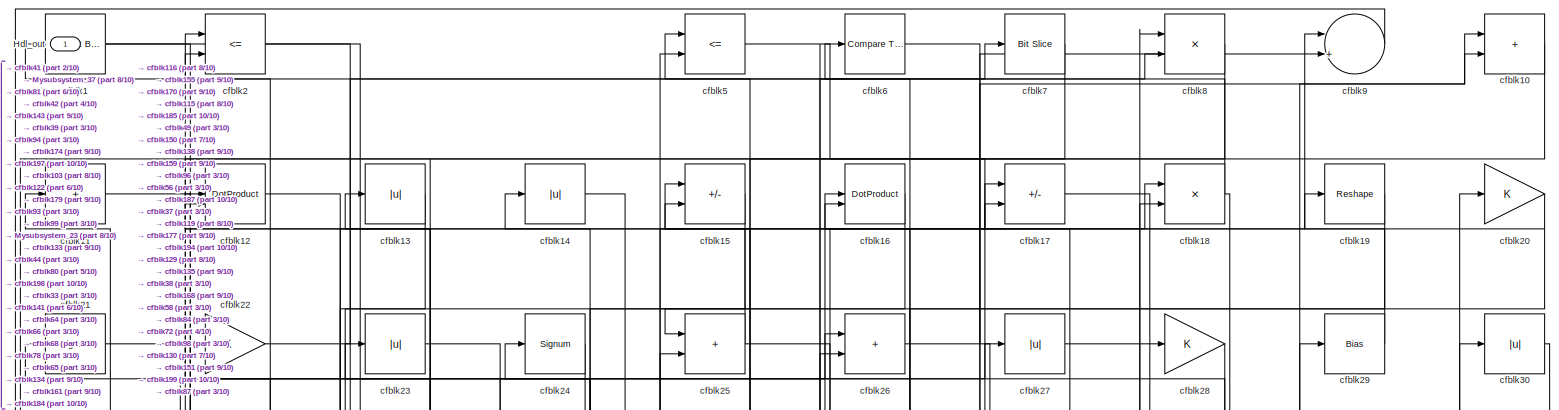
[diagram: root canvas - part 1/10, full width, top band]
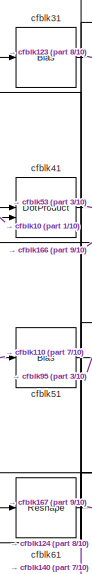
[diagram: root canvas - part 2/10, top left region]
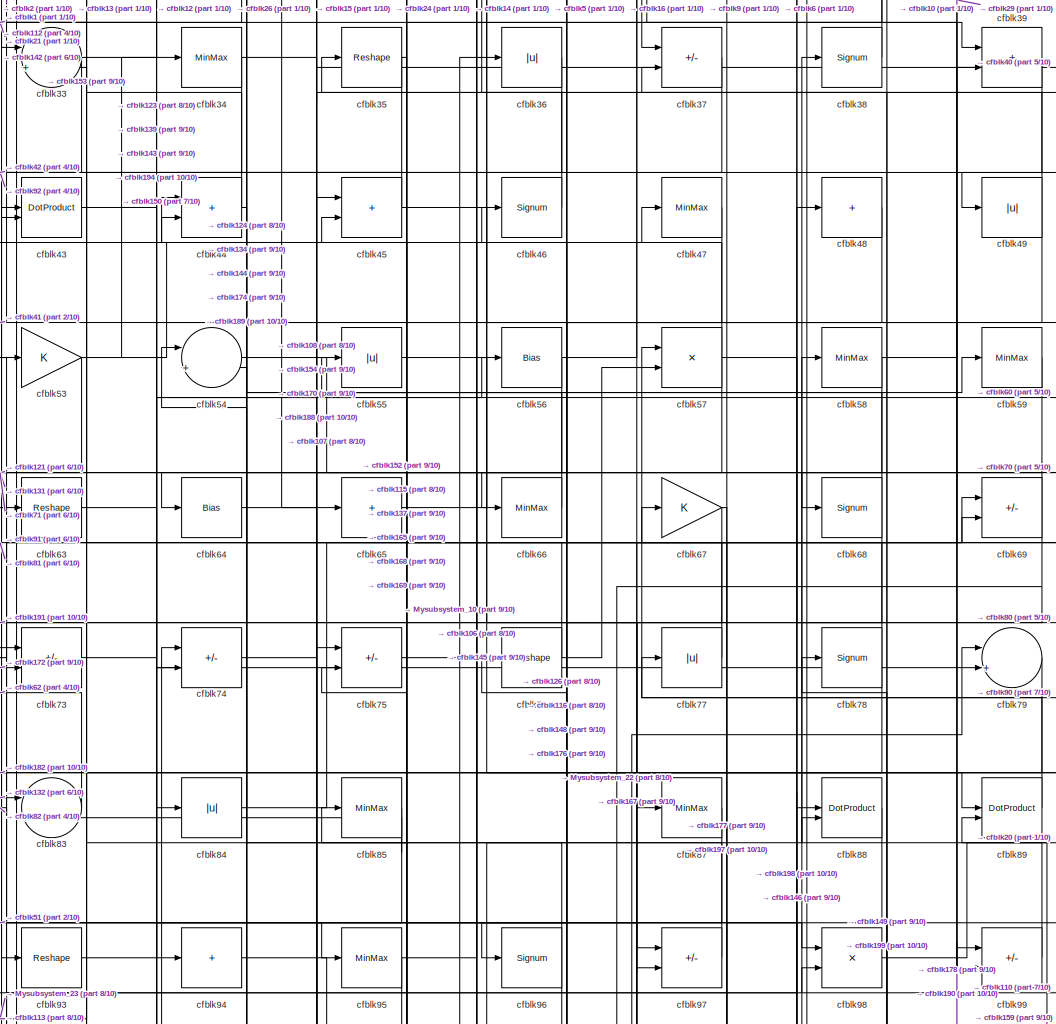
[diagram: root canvas - part 3/10, top center region]
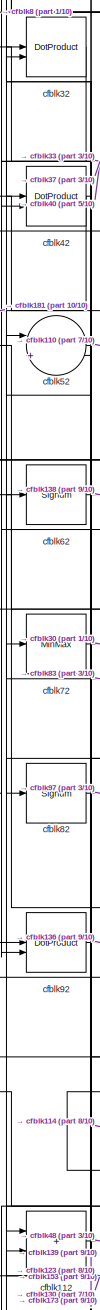
[diagram: root canvas - part 4/10, middle left region]
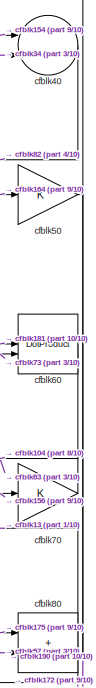
[diagram: root canvas - part 5/10, top right region]
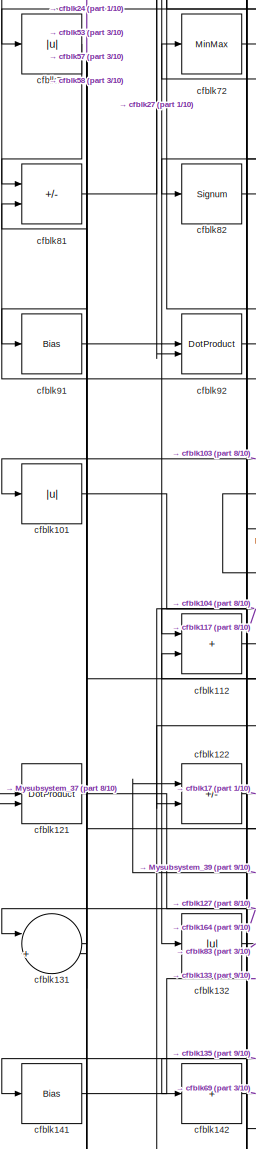
[diagram: root canvas - part 6/10, middle left region]
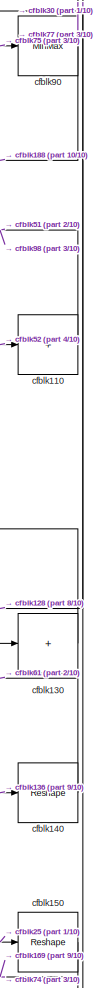
[diagram: root canvas - part 7/10, middle right region]
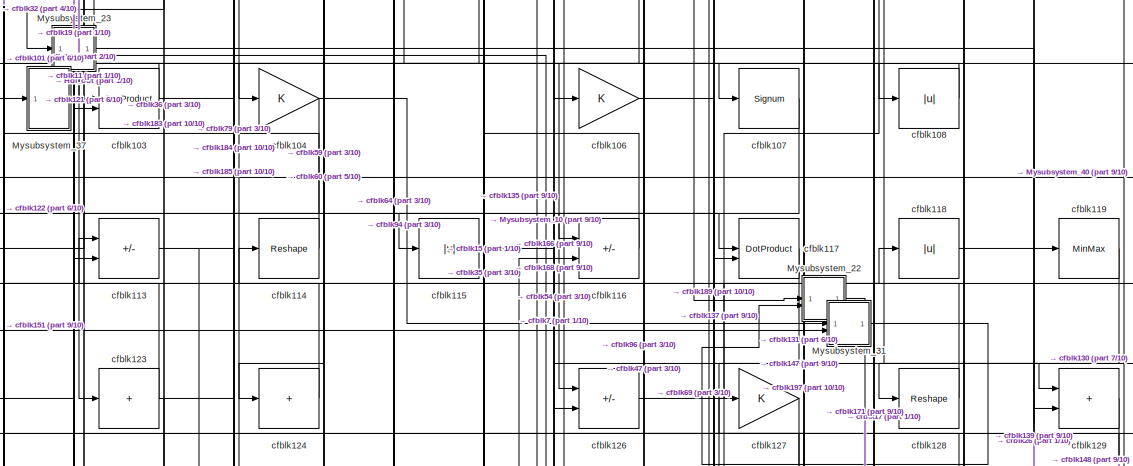
[diagram: root canvas - part 8/10, central region]
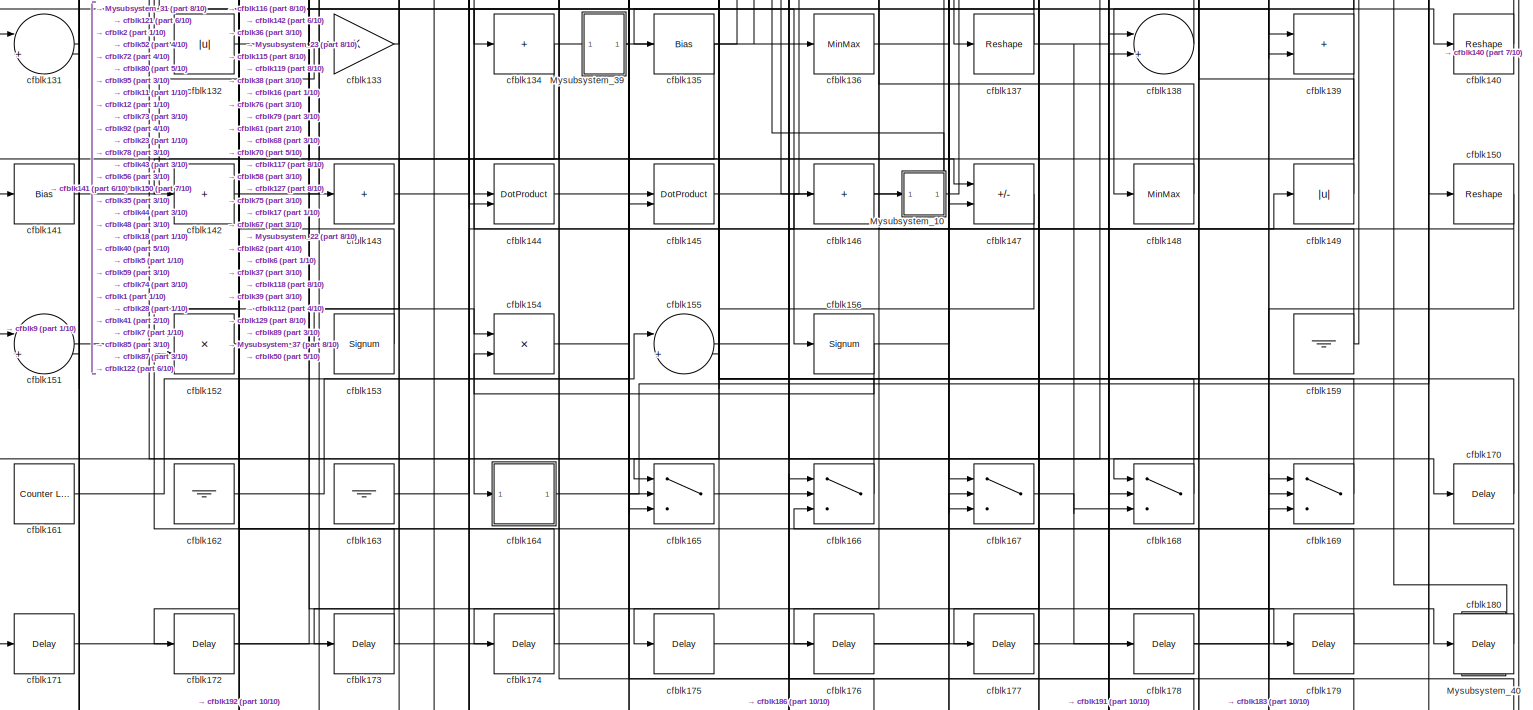
[diagram: root canvas - part 9/10, full width, bottom band]
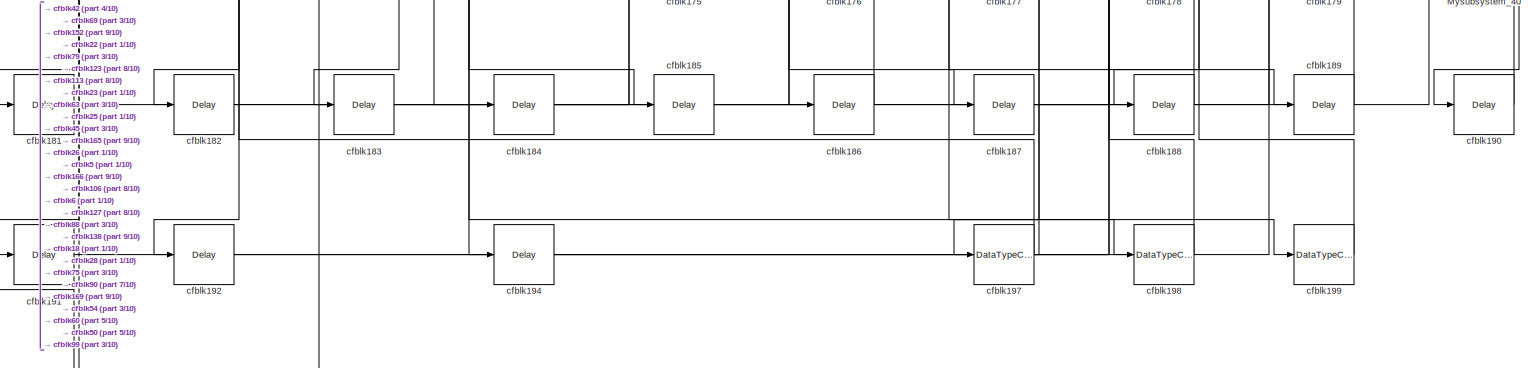
[diagram: root canvas - part 10/10, full width, bottom band]
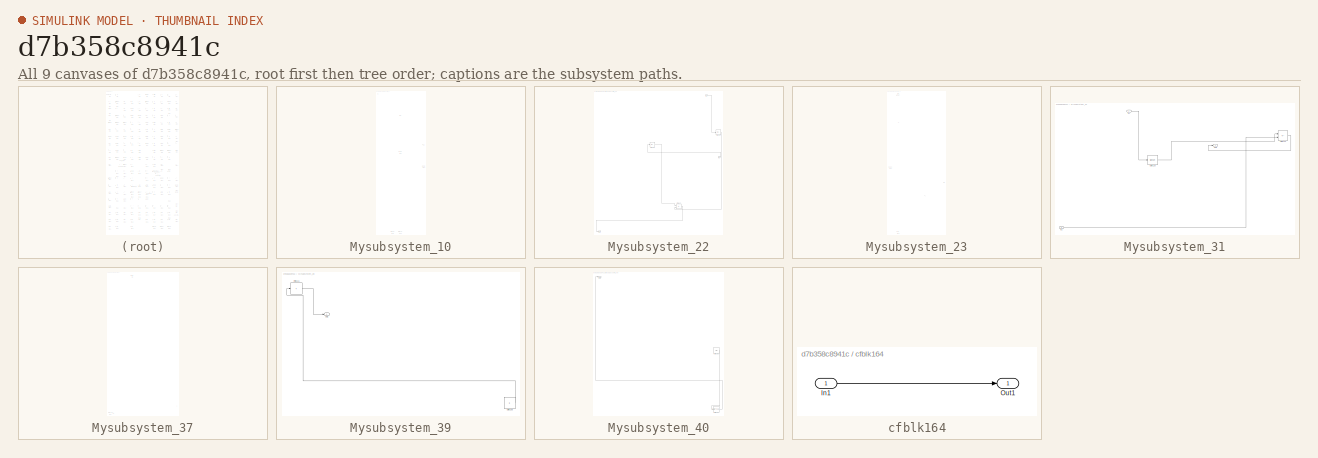
[diagram: thumbnail index - all 9 canvases of the model, root first then tree order]
MODEL slx_d7b358c8941c
KIND model
CONFIG AbsTol = auto
CONFIG EnableMultiTasking = off
CONFIG FixedStep = auto
CONFIG MaxStep = auto
CONFIG MinStep = auto
CONFIG RelTol = 1e-3
CONFIG SampleTimeConstraint = Unconstrained
CONFIG SolverName = VariableStepAuto
CONFIG StartTime = 0.0
CONFIG StopTime = 10.0
BLOCK [Outport] Hdl_out
  OutDataTypeStr = uint8
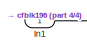
[diagram: Mysubsystem_10 - part 1/4, top left region]
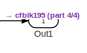
[diagram: Mysubsystem_10 - part 2/4, top center region]
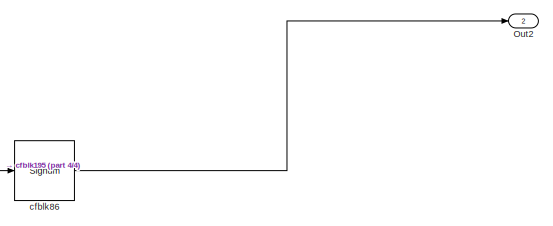
[diagram: Mysubsystem_10 - part 3/4, middle right region]
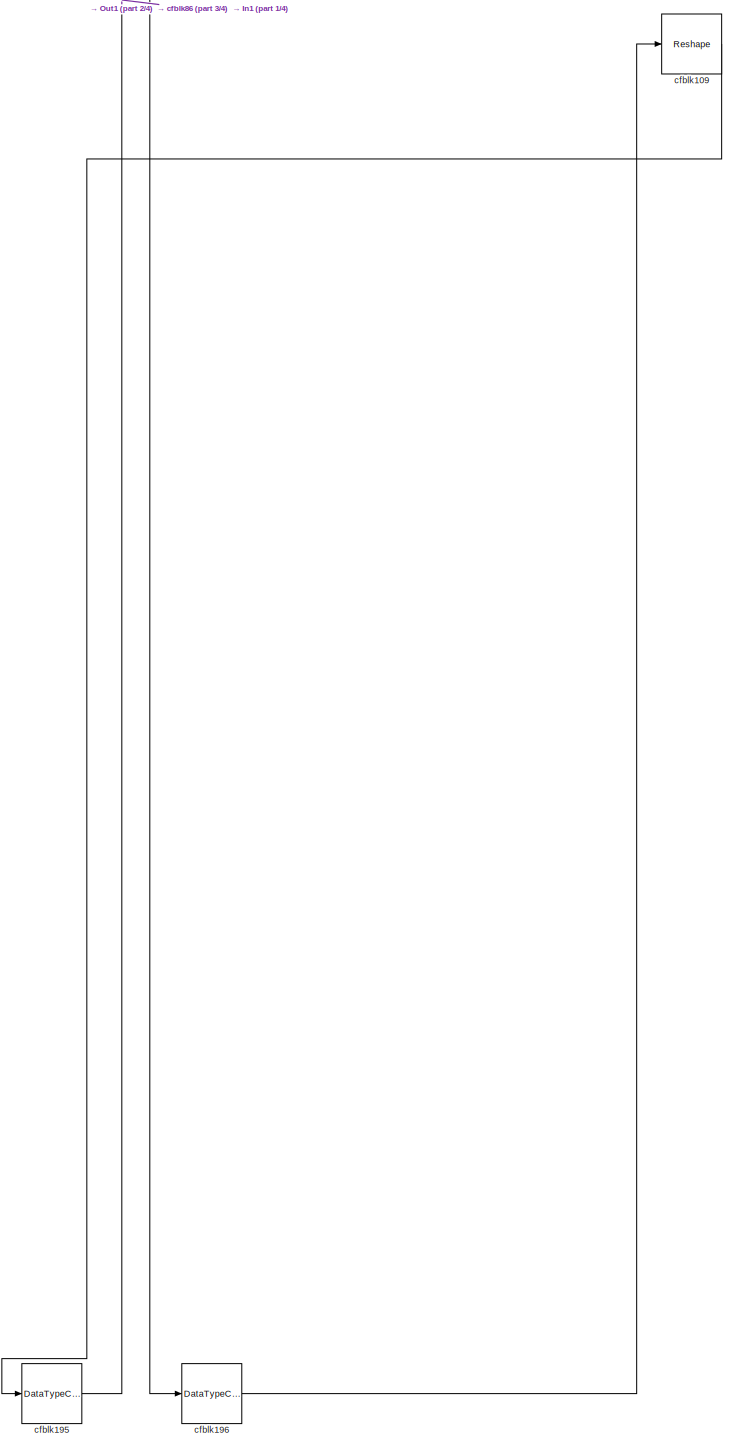
[diagram: Mysubsystem_10 - part 4/4, bottom center region]
BLOCK [SubSystem] Mysubsystem_10
  RTWFcnName = Mysubsystem_10
  RTWFcnNameOpts = User specified
  RTWFileNameOpts = Use function name
  RTWSystemCode = Reusable function
  TreatAsAtomicUnit = on
BLOCK [Inport] Mysubsystem_10/In1
BLOCK [Outport] Mysubsystem_10/Out1
BLOCK [Outport] Mysubsystem_10/Out2
  Port = 2
BLOCK [Reshape] Mysubsystem_10/cfblk109
BLOCK [DataTypeConversion] Mysubsystem_10/cfblk195
  RndMeth = Floor
  SaturateOnIntegerOverflow = off
BLOCK [DataTypeConversion] Mysubsystem_10/cfblk196
  OutDataTypeStr = uint8
  RndMeth = Floor
  SaturateOnIntegerOverflow = off
BLOCK [Signum] Mysubsystem_10/cfblk86
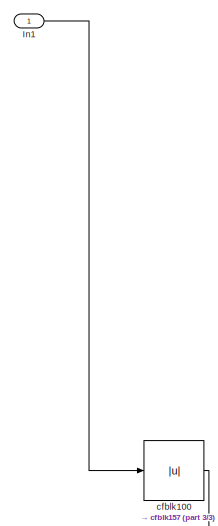
[diagram: Mysubsystem_22 - part 1/3, top right region]
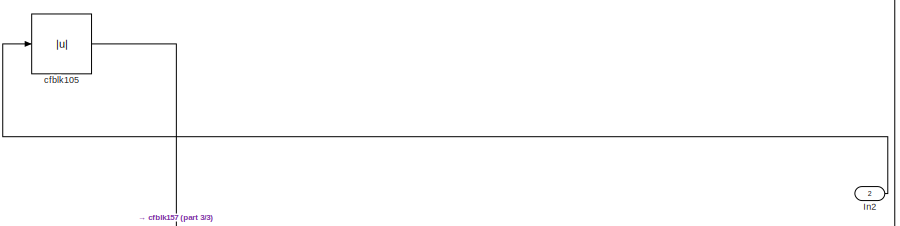
[diagram: Mysubsystem_22 - part 2/3, middle right region]
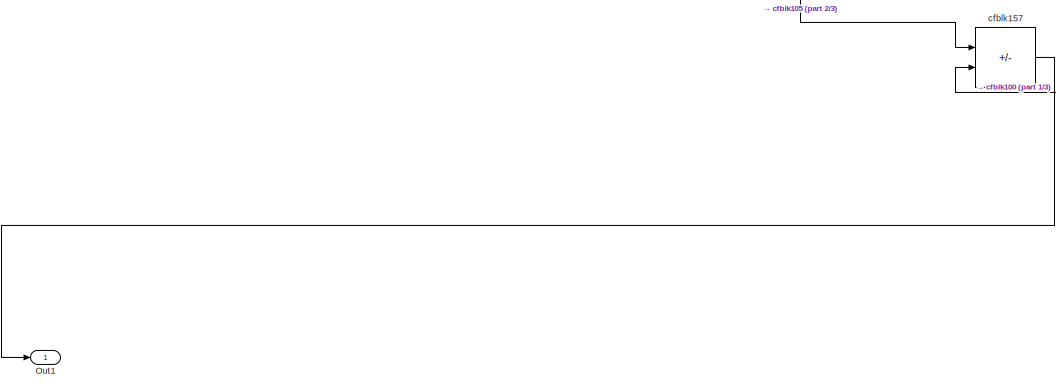
[diagram: Mysubsystem_22 - part 3/3, bottom center region]
BLOCK [SubSystem] Mysubsystem_22
  RTWFcnName = Mysubsystem_22
  RTWFcnNameOpts = User specified
  RTWFileNameOpts = Use function name
  RTWSystemCode = Reusable function
  TreatAsAtomicUnit = on
BLOCK [Inport] Mysubsystem_22/In1
BLOCK [Inport] Mysubsystem_22/In2
  Port = 2
BLOCK [Outport] Mysubsystem_22/Out1
BLOCK [Abs] Mysubsystem_22/cfblk100
  SaturateOnIntegerOverflow = off
BLOCK [Abs] Mysubsystem_22/cfblk105
  SaturateOnIntegerOverflow = off
BLOCK [Sum] Mysubsystem_22/cfblk157
  IconShape = rectangular
  Inputs = +-
BLOCK [SubSystem] Mysubsystem_23
  RTWFcnName = Mysubsystem_23
  RTWFcnNameOpts = User specified
  RTWFileNameOpts = Use function name
  RTWSystemCode = Reusable function
  TreatAsAtomicUnit = on
BLOCK [Inport] Mysubsystem_23/In1
BLOCK [Outport] Mysubsystem_23/Out1
BLOCK [Reshape] Mysubsystem_23/cfblk102
BLOCK [Delay] Mysubsystem_23/cfblk193
  InputPortMap = u0
  SampleTime = 1
BLOCK [Reference] Mysubsystem_23/cfblk3  REF=hdlsllib/Logic and Bit
Operations/Compare
To Zero
  SourceBlock = hdlsllib/Logic and Bit\nOperations/Compare\nTo Zero
  SourceType = Compare To Zero
BLOCK [Outport] Mysubsystem_23/y
  Port = 2
BLOCK [SubSystem] Mysubsystem_31
  RTWFcnName = Mysubsystem_31
  RTWFcnNameOpts = User specified
  RTWFileNameOpts = Use function name
  RTWSystemCode = Reusable function
  TreatAsAtomicUnit = on
BLOCK [Inport] Mysubsystem_31/In1
BLOCK [Inport] Mysubsystem_31/In2
  Port = 2
BLOCK [Outport] Mysubsystem_31/Out1
BLOCK [Sum] Mysubsystem_31/cfblk120
  IconShape = rectangular
  Inputs = +-
BLOCK [Signum] Mysubsystem_31/cfblk125
BLOCK [SubSystem] Mysubsystem_37
  RTWFcnName = Mysubsystem_37
  RTWFcnNameOpts = User specified
  RTWFileNameOpts = Use function name
  RTWSystemCode = Reusable function
  TreatAsAtomicUnit = on
BLOCK [Outport] Mysubsystem_37/Out1
BLOCK [DataTypeConversion] Mysubsystem_37/cfblk201
  RndMeth = Floor
  SaturateOnIntegerOverflow = off
BLOCK [Reference] Mysubsystem_37/cfblk4  REF=simulink/Logic and Bit
Operations/Bit Clear
  LibrarySourceBlock = hdlsllib/Logic and Bit\nOperations/Bit Clear
  SourceBlock = simulink/Logic and Bit\nOperations/Bit Clear
  SourceType = Bit Clear
BLOCK [Inport] Mysubsystem_37/u
BLOCK [SubSystem] Mysubsystem_39
  RTWFcnName = Mysubsystem_39
  RTWFcnNameOpts = User specified
  RTWFileNameOpts = Use function name
  RTWSystemCode = Reusable function
  TreatAsAtomicUnit = on
BLOCK [Outport] Mysubsystem_39/Out1
BLOCK [Sum] Mysubsystem_39/cfblk111
  IconShape = rectangular
  Inputs = +
BLOCK [Constant] Mysubsystem_39/cfblk158
  SampleTime = -1
BLOCK [SubSystem] Mysubsystem_40
  RTWFcnName = Mysubsystem_40
  RTWFcnNameOpts = User specified
  RTWFileNameOpts = Use function name
  RTWSystemCode = Reusable function
  TreatAsAtomicUnit = on
BLOCK [Outport] Mysubsystem_40/Out1
BLOCK [Ground] Mysubsystem_40/cfblk160
BLOCK [DataTypeConversion] Mysubsystem_40/cfblk200
  OutDataTypeStr = boolean
  RndMeth = Floor
  SaturateOnIntegerOverflow = off
BLOCK [Reference] cfblk1  REF=simulink/Logic and Bit
Operations/Extract Bits
  LibrarySourceBlock = hdlsllib/Logic and Bit\nOperations/Extract Bits
  SourceBlock = simulink/Logic and Bit\nOperations/Extract Bits
  SourceType = Extract Bits
BLOCK [Sum] cfblk10
  IconShape = rectangular
  OutDataTypeStr = uint8
BLOCK [Abs] cfblk101
  OutDataTypeStr = uint8
  SaturateOnIntegerOverflow = off
BLOCK [DotProduct] cfblk103
  OutDataTypeStr = uint8
BLOCK [Gain] cfblk104
  OutDataTypeStr = uint8
BLOCK [Gain] cfblk106
  OutDataTypeStr = uint8
BLOCK [Signum] cfblk107
BLOCK [Abs] cfblk108
  OutDataTypeStr = uint8
  SaturateOnIntegerOverflow = off
BLOCK [Sum] cfblk11
  IconShape = rectangular
  Inputs = +
  OutDataTypeStr = uint8
BLOCK [Sum] cfblk110
  IconShape = rectangular
  Inputs = +
  OutDataTypeStr = uint8
BLOCK [Sum] cfblk112
  IconShape = rectangular
  OutDataTypeStr = uint8
BLOCK [Sum] cfblk113
  IconShape = rectangular
  Inputs = +-
  OutDataTypeStr = uint8
BLOCK [Reshape] cfblk114
BLOCK [Abs] cfblk115
  OutDataTypeStr = uint8
  SaturateOnIntegerOverflow = off
BLOCK [Sum] cfblk116
  IconShape = rectangular
  Inputs = +-
  OutDataTypeStr = uint8
BLOCK [DotProduct] cfblk117
  OutDataTypeStr = uint8
BLOCK [Abs] cfblk118
  OutDataTypeStr = uint8
  SaturateOnIntegerOverflow = off
BLOCK [MinMax] cfblk119
  OutDataTypeStr = uint8
BLOCK [DotProduct] cfblk12
  OutDataTypeStr = uint8
BLOCK [DotProduct] cfblk121
  OutDataTypeStr = uint8
BLOCK [Sum] cfblk122
  IconShape = rectangular
  Inputs = +-
  OutDataTypeStr = uint8
BLOCK [Sum] cfblk123
  IconShape = rectangular
  Inputs = +
  OutDataTypeStr = uint8
BLOCK [Sum] cfblk124
  IconShape = rectangular
  Inputs = +
  OutDataTypeStr = uint8
BLOCK [Sum] cfblk126
  IconShape = rectangular
  Inputs = +-
  OutDataTypeStr = uint8
BLOCK [Gain] cfblk127
  OutDataTypeStr = uint8
BLOCK [Reshape] cfblk128
BLOCK [Sum] cfblk129
  IconShape = rectangular
  OutDataTypeStr = uint8
BLOCK [Abs] cfblk13
  OutDataTypeStr = uint8
  SaturateOnIntegerOverflow = off
BLOCK [Sum] cfblk130
  IconShape = rectangular
  Inputs = +
  OutDataTypeStr = uint8
BLOCK [Sum] cfblk131
  Inputs = |++
  OutDataTypeStr = uint8
BLOCK [Abs] cfblk132
  OutDataTypeStr = uint8
  SaturateOnIntegerOverflow = off
BLOCK [Gain] cfblk133
  OutDataTypeStr = uint8
BLOCK [Sum] cfblk134
  IconShape = rectangular
  Inputs = +
  OutDataTypeStr = uint8
BLOCK [Bias] cfblk135
  Bias = 0.0
  SaturateOnIntegerOverflow = off
BLOCK [MinMax] cfblk136
  OutDataTypeStr = uint8
BLOCK [Reshape] cfblk137
BLOCK [Sum] cfblk138
  Inputs = |++
  OutDataTypeStr = uint8
BLOCK [Sum] cfblk139
  IconShape = rectangular
  OutDataTypeStr = uint8
BLOCK [Abs] cfblk14
  OutDataTypeStr = uint8
  SaturateOnIntegerOverflow = off
BLOCK [Reshape] cfblk140
BLOCK [Bias] cfblk141
  Bias = 0.0
  SaturateOnIntegerOverflow = off
BLOCK [Sum] cfblk142
  IconShape = rectangular
  Inputs = +
  OutDataTypeStr = uint8
BLOCK [Sum] cfblk143
  IconShape = rectangular
  Inputs = +
  OutDataTypeStr = uint8
BLOCK [DotProduct] cfblk144
  OutDataTypeStr = uint8
BLOCK [DotProduct] cfblk145
  OutDataTypeStr = uint8
BLOCK [Sum] cfblk146
  IconShape = rectangular
  Inputs = +
  OutDataTypeStr = uint8
BLOCK [Sum] cfblk147
  IconShape = rectangular
  Inputs = +-
  OutDataTypeStr = uint8
BLOCK [MinMax] cfblk148
  OutDataTypeStr = uint8
BLOCK [Abs] cfblk149
  OutDataTypeStr = uint8
  SaturateOnIntegerOverflow = off
BLOCK [Sum] cfblk15
  IconShape = rectangular
  Inputs = +-
  OutDataTypeStr = uint8
BLOCK [Reshape] cfblk150
BLOCK [Sum] cfblk151
  Inputs = |++
  OutDataTypeStr = uint8
BLOCK [Product] cfblk152
  Inputs = */
  OutDataTypeStr = uint8
  RndMeth = Zero
  SaturateOnIntegerOverflow = on
BLOCK [Signum] cfblk153
BLOCK [Product] cfblk154
  Inputs = */
  OutDataTypeStr = uint8
  RndMeth = Zero
  SaturateOnIntegerOverflow = on
BLOCK [Sum] cfblk155
  Inputs = |++
  OutDataTypeStr = uint8
BLOCK [Signum] cfblk156
BLOCK [Ground] cfblk159
BLOCK [DotProduct] cfblk16
  OutDataTypeStr = uint8
BLOCK [Reference] cfblk161  REF=hdlsllib/Sources/Counter
Limited
  SourceBlock = hdlsllib/Sources/Counter\nLimited
  SourceType = Counter Limited
BLOCK [Ground] cfblk162
BLOCK [Ground] cfblk163
BLOCK [SubSystem] cfblk164
  LibrarySourceBlock = hdlsllib/Ports &\nSubsystems/Subsystem
BLOCK [Inport] cfblk164/In1
BLOCK [Outport] cfblk164/Out1
BLOCK [Switch] cfblk165
  InputSameDT = off
  OutDataTypeStr = uint8
  SaturateOnIntegerOverflow = off
BLOCK [Switch] cfblk166
  InputSameDT = off
  OutDataTypeStr = uint8
  SaturateOnIntegerOverflow = off
BLOCK [Switch] cfblk167
  InputSameDT = off
  OutDataTypeStr = uint8
  SaturateOnIntegerOverflow = off
BLOCK [Switch] cfblk168
  InputSameDT = off
  OutDataTypeStr = uint8
  SaturateOnIntegerOverflow = off
BLOCK [Switch] cfblk169
  InputSameDT = off
  OutDataTypeStr = uint8
  SaturateOnIntegerOverflow = off
BLOCK [Sum] cfblk17
  IconShape = rectangular
  Inputs = +-
  OutDataTypeStr = uint8
BLOCK [Delay] cfblk170
  InputPortMap = u0
  SampleTime = 1
BLOCK [Delay] cfblk171
  InputPortMap = u0
  SampleTime = 1
BLOCK [Delay] cfblk172
  InputPortMap = u0
  SampleTime = 1
BLOCK [Delay] cfblk173
  InputPortMap = u0
  SampleTime = 1
BLOCK [Delay] cfblk174
  InputPortMap = u0
  SampleTime = 1
BLOCK [Delay] cfblk175
  InputPortMap = u0
  SampleTime = 1
BLOCK [Delay] cfblk176
  InputPortMap = u0
  SampleTime = 1
BLOCK [Delay] cfblk177
  InputPortMap = u0
  SampleTime = 1
BLOCK [Delay] cfblk178
  InputPortMap = u0
  SampleTime = 1
BLOCK [Delay] cfblk179
  InputPortMap = u0
  SampleTime = 1
BLOCK [Product] cfblk18
  Inputs = */
  OutDataTypeStr = uint8
  RndMeth = Zero
  SaturateOnIntegerOverflow = on
BLOCK [Delay] cfblk180
  InputPortMap = u0
  SampleTime = 1
BLOCK [Delay] cfblk181
  InputPortMap = u0
  SampleTime = 1
BLOCK [Delay] cfblk182
  InputPortMap = u0
  SampleTime = 1
BLOCK [Delay] cfblk183
  InputPortMap = u0
  SampleTime = 1
BLOCK [Delay] cfblk184
  InputPortMap = u0
  SampleTime = 1
BLOCK [Delay] cfblk185
  InputPortMap = u0
  SampleTime = 1
BLOCK [Delay] cfblk186
  InputPortMap = u0
  SampleTime = 1
BLOCK [Delay] cfblk187
  InputPortMap = u0
  SampleTime = 1
BLOCK [Delay] cfblk188
  InputPortMap = u0
  SampleTime = 1
BLOCK [Delay] cfblk189
  InputPortMap = u0
  SampleTime = 1
BLOCK [Reshape] cfblk19
BLOCK [Delay] cfblk190
  InputPortMap = u0
  SampleTime = 1
BLOCK [Delay] cfblk191
  InputPortMap = u0
  SampleTime = 1
BLOCK [Delay] cfblk192
  InputPortMap = u0
  SampleTime = 1
BLOCK [Delay] cfblk194
  InputPortMap = u0
  SampleTime = 1
BLOCK [DataTypeConversion] cfblk197
  OutDataTypeStr = uint8
  RndMeth = Floor
  SaturateOnIntegerOverflow = off
BLOCK [DataTypeConversion] cfblk198
  OutDataTypeStr = uint8
  RndMeth = Floor
  SaturateOnIntegerOverflow = off
BLOCK [DataTypeConversion] cfblk199
  OutDataTypeStr = uint8
  RndMeth = Floor
  SaturateOnIntegerOverflow = off
BLOCK [RelationalOperator] cfblk2
  InputSameDT = off
  Operator = <=
  OutDataTypeStr = boolean
BLOCK [Gain] cfblk20
  OutDataTypeStr = uint8
BLOCK [Signum] cfblk21
BLOCK [Gain] cfblk22
  OutDataTypeStr = uint8
BLOCK [Abs] cfblk23
  OutDataTypeStr = uint8
  SaturateOnIntegerOverflow = off
BLOCK [Signum] cfblk24
BLOCK [Sum] cfblk25
  IconShape = rectangular
  OutDataTypeStr = uint8
BLOCK [Sum] cfblk26
  IconShape = rectangular
  OutDataTypeStr = uint8
BLOCK [Abs] cfblk27
  OutDataTypeStr = uint8
  SaturateOnIntegerOverflow = off
BLOCK [Gain] cfblk28
  OutDataTypeStr = uint8
BLOCK [Bias] cfblk29
  Bias = 0.0
  SaturateOnIntegerOverflow = off
BLOCK [Abs] cfblk30
  OutDataTypeStr = uint8
  SaturateOnIntegerOverflow = off
BLOCK [Bias] cfblk31
  Bias = 0.0
  SaturateOnIntegerOverflow = off
BLOCK [DotProduct] cfblk32
  OutDataTypeStr = uint8
BLOCK [Sum] cfblk33
  Inputs = |++
  OutDataTypeStr = uint8
BLOCK [MinMax] cfblk34
  OutDataTypeStr = uint8
BLOCK [Reshape] cfblk35
BLOCK [Abs] cfblk36
  OutDataTypeStr = uint8
  SaturateOnIntegerOverflow = off
BLOCK [Sum] cfblk37
  IconShape = rectangular
  Inputs = +-
  OutDataTypeStr = uint8
BLOCK [Signum] cfblk38
BLOCK [Sum] cfblk39
  IconShape = rectangular
  OutDataTypeStr = uint8
BLOCK [Sum] cfblk40
  Inputs = |++
  OutDataTypeStr = uint8
BLOCK [DotProduct] cfblk41
  OutDataTypeStr = uint8
BLOCK [DotProduct] cfblk42
  OutDataTypeStr = uint8
BLOCK [DotProduct] cfblk43
  OutDataTypeStr = uint8
BLOCK [Sum] cfblk44
  IconShape = rectangular
  OutDataTypeStr = uint8
BLOCK [Sum] cfblk45
  IconShape = rectangular
  OutDataTypeStr = uint8
BLOCK [Signum] cfblk46
BLOCK [MinMax] cfblk47
  OutDataTypeStr = uint8
BLOCK [Sum] cfblk48
  IconShape = rectangular
  Inputs = +
  OutDataTypeStr = uint8
BLOCK [Abs] cfblk49
  OutDataTypeStr = uint8
  SaturateOnIntegerOverflow = off
BLOCK [RelationalOperator] cfblk5
  InputSameDT = off
  Operator = <=
  OutDataTypeStr = boolean
BLOCK [Gain] cfblk50
  OutDataTypeStr = uint8
BLOCK [Bias] cfblk51
  Bias = 0.0
  SaturateOnIntegerOverflow = off
BLOCK [Sum] cfblk52
  Inputs = |++
  OutDataTypeStr = uint8
BLOCK [Gain] cfblk53
  OutDataTypeStr = uint8
BLOCK [Sum] cfblk54
  Inputs = |++
  OutDataTypeStr = uint8
BLOCK [Abs] cfblk55
  OutDataTypeStr = uint8
  SaturateOnIntegerOverflow = off
BLOCK [Bias] cfblk56
  Bias = 0.0
  SaturateOnIntegerOverflow = off
BLOCK [Product] cfblk57
  Inputs = */
  OutDataTypeStr = uint8
  RndMeth = Zero
  SaturateOnIntegerOverflow = on
BLOCK [MinMax] cfblk58
  OutDataTypeStr = uint8
BLOCK [MinMax] cfblk59
  OutDataTypeStr = uint8
BLOCK [Reference] cfblk6  REF=hdlsllib/Logic and Bit
Operations/Compare
To Zero
  SourceBlock = hdlsllib/Logic and Bit\nOperations/Compare\nTo Zero
  SourceType = Compare To Zero
BLOCK [DotProduct] cfblk60
  OutDataTypeStr = uint8
BLOCK [Reshape] cfblk61
BLOCK [Signum] cfblk62
BLOCK [Reshape] cfblk63
BLOCK [Bias] cfblk64
  Bias = 0.0
  SaturateOnIntegerOverflow = off
BLOCK [Sum] cfblk65
  IconShape = rectangular
  Inputs = +
  OutDataTypeStr = uint8
BLOCK [MinMax] cfblk66
  OutDataTypeStr = uint8
BLOCK [Gain] cfblk67
  OutDataTypeStr = uint8
BLOCK [Signum] cfblk68
BLOCK [Sum] cfblk69
  IconShape = rectangular
  Inputs = +-
  OutDataTypeStr = uint8
BLOCK [Reference] cfblk7  REF=hdlsllib/Logic and Bit
Operations/Bit Slice
  SourceBlock = hdlsllib/Logic and Bit\nOperations/Bit Slice
  SourceType = Bit Slice
BLOCK [Gain] cfblk70
  OutDataTypeStr = uint8
BLOCK [Abs] cfblk71
  OutDataTypeStr = uint8
  SaturateOnIntegerOverflow = off
BLOCK [MinMax] cfblk72
  OutDataTypeStr = uint8
BLOCK [Sum] cfblk73
  IconShape = rectangular
  Inputs = +-
  OutDataTypeStr = uint8
BLOCK [Sum] cfblk74
  IconShape = rectangular
  Inputs = +-
  OutDataTypeStr = uint8
BLOCK [Sum] cfblk75
  IconShape = rectangular
  Inputs = +-
  OutDataTypeStr = uint8
BLOCK [Reshape] cfblk76
BLOCK [Abs] cfblk77
  OutDataTypeStr = uint8
  SaturateOnIntegerOverflow = off
BLOCK [Signum] cfblk78
BLOCK [Sum] cfblk79
  Inputs = |++
  OutDataTypeStr = uint8
BLOCK [Product] cfblk8
  Inputs = */
  OutDataTypeStr = uint8
  RndMeth = Zero
  SaturateOnIntegerOverflow = on
BLOCK [Sum] cfblk80
  IconShape = rectangular
  OutDataTypeStr = uint8
BLOCK [Sum] cfblk81
  IconShape = rectangular
  Inputs = +-
  OutDataTypeStr = uint8
BLOCK [Signum] cfblk82
BLOCK [Sum] cfblk83
  Inputs = |++
  OutDataTypeStr = uint8
BLOCK [Abs] cfblk84
  OutDataTypeStr = uint8
  SaturateOnIntegerOverflow = off
BLOCK [MinMax] cfblk85
  OutDataTypeStr = uint8
BLOCK [MinMax] cfblk87
  OutDataTypeStr = uint8
BLOCK [DotProduct] cfblk88
  OutDataTypeStr = uint8
BLOCK [DotProduct] cfblk89
  OutDataTypeStr = uint8
BLOCK [Sum] cfblk9
  Inputs = |++
  OutDataTypeStr = uint8
BLOCK [MinMax] cfblk90
  OutDataTypeStr = uint8
BLOCK [Bias] cfblk91
  Bias = 0.0
  SaturateOnIntegerOverflow = off
BLOCK [DotProduct] cfblk92
  OutDataTypeStr = uint8
BLOCK [Reshape] cfblk93
BLOCK [Sum] cfblk94
  IconShape = rectangular
  Inputs = +
  OutDataTypeStr = uint8
BLOCK [MinMax] cfblk95
  OutDataTypeStr = uint8
BLOCK [Signum] cfblk96
BLOCK [Sum] cfblk97
  IconShape = rectangular
  Inputs = +-
  OutDataTypeStr = uint8
BLOCK [Product] cfblk98
  Inputs = */
  OutDataTypeStr = uint8
  RndMeth = Zero
  SaturateOnIntegerOverflow = on
BLOCK [Sum] cfblk99
  IconShape = rectangular
  Inputs = +-
  OutDataTypeStr = uint8
LINE Mysubsystem_10/In1:1 -> Mysubsystem_10/cfblk196:1
LINE Mysubsystem_10/cfblk109:1 -> Mysubsystem_10/cfblk195:1
NET Mysubsystem_10/cfblk195:1 -> Mysubsystem_10/Out1:1, Mysubsystem_10/cfblk86:1
LINE Mysubsystem_10/cfblk196:1 -> Mysubsystem_10/cfblk109:1
LINE Mysubsystem_10/cfblk86:1 -> Mysubsystem_10/Out2:1
LINE Mysubsystem_10:1 -> cfblk36:1
LINE Mysubsystem_10:2 -> cfblk79:1
LINE Mysubsystem_22/In1:1 -> Mysubsystem_22/cfblk100:1
LINE Mysubsystem_22/In2:1 -> Mysubsystem_22/cfblk105:1
LINE Mysubsystem_22/cfblk100:1 -> Mysubsystem_22/cfblk157:2
LINE Mysubsystem_22/cfblk105:1 -> Mysubsystem_22/cfblk157:1
LINE Mysubsystem_22/cfblk157:1 -> Mysubsystem_22/Out1:1
LINE Mysubsystem_22:1 -> cfblk171:1
LINE Mysubsystem_23/In1:1 -> Mysubsystem_23/cfblk193:1
LINE Mysubsystem_23/cfblk102:1 -> Mysubsystem_23/Out1:1
LINE Mysubsystem_23/cfblk193:1 -> Mysubsystem_23/cfblk3:1
NET Mysubsystem_23/cfblk3:1 -> Mysubsystem_23/cfblk102:1, Mysubsystem_23/y:1
NET Mysubsystem_23:1 -> Hdl_out:1, cfblk129:2
LINE Mysubsystem_23:2 -> Mysubsystem_10:1
LINE Mysubsystem_31/In1:1 -> Mysubsystem_31/cfblk125:1
LINE Mysubsystem_31/In2:1 -> Mysubsystem_31/cfblk120:2
LINE Mysubsystem_31/cfblk120:1 -> Mysubsystem_31/Out1:1
LINE Mysubsystem_31/cfblk125:1 -> Mysubsystem_31/cfblk120:1
LINE Mysubsystem_31:1 -> Mysubsystem_22:2
LINE Mysubsystem_37/cfblk201:1 -> Mysubsystem_37/Out1:1
LINE Mysubsystem_37/cfblk4:1 -> Mysubsystem_37/cfblk201:1
LINE Mysubsystem_37/u:1 -> Mysubsystem_37/cfblk4:1
NET Mysubsystem_37:1 -> cfblk11:1, cfblk121:1
LINE Mysubsystem_39/cfblk111:1 -> Mysubsystem_39/Out1:1
LINE Mysubsystem_39/cfblk158:1 -> Mysubsystem_39/cfblk111:1
LINE Mysubsystem_39:1 -> cfblk122:1
LINE Mysubsystem_40/cfblk160:1 -> Mysubsystem_40/cfblk200:1
LINE Mysubsystem_40/cfblk200:1 -> Mysubsystem_40/Out1:1
LINE Mysubsystem_40:1 -> Mysubsystem_37:1
LINE cfblk101:1 -> cfblk117:1
NET cfblk103:1 -> cfblk101:1, cfblk117:2
NET cfblk104:1 -> Mysubsystem_31:1, cfblk122:2
LINE cfblk106:1 -> cfblk189:1
LINE cfblk107:1 -> cfblk126:2
LINE cfblk108:1 -> cfblk103:1
NET cfblk10:1 -> cfblk33:1, cfblk41:2
NET cfblk110:1 -> cfblk51:1, cfblk98:2
LINE cfblk112:1 -> cfblk48:1
NET cfblk113:1 -> cfblk184:1, cfblk185:1
LINE cfblk114:1 -> cfblk32:1
NET cfblk115:1 -> cfblk168:2, cfblk7:1
LINE cfblk116:1 -> cfblk15:1
LINE cfblk117:1 -> cfblk137:1
LINE cfblk118:1 -> cfblk139:1
LINE cfblk119:1 -> cfblk166:2
LINE cfblk11:1 -> cfblk143:1
LINE cfblk121:1 -> cfblk164:1
LINE cfblk122:1 -> cfblk17:1
NET cfblk123:1 -> cfblk183:1, cfblk32:2, cfblk79:2
NET cfblk124:1 -> cfblk113:1, cfblk31:1
LINE cfblk126:1 -> cfblk118:1
NET cfblk127:1 -> cfblk131:1, cfblk147:2
LINE cfblk128:1 -> cfblk114:1
LINE cfblk129:1 -> cfblk148:1
LINE cfblk12:1 -> cfblk179:1
NET cfblk130:1 -> cfblk128:1, cfblk52:2
LINE cfblk131:1 -> cfblk81:2
LINE cfblk132:1 -> cfblk83:1
LINE cfblk133:1 -> cfblk23:1
NET cfblk134:1 -> cfblk151:2, cfblk18:1
NET cfblk135:1 -> cfblk116:2, cfblk142:1, cfblk156:1
LINE cfblk136:1 -> cfblk140:1
NET cfblk137:1 -> cfblk168:3, cfblk180:1, cfblk75:2
LINE cfblk138:1 -> cfblk6:1
NET cfblk139:1 -> cfblk112:2, cfblk173:1
LINE cfblk13:1 -> cfblk93:1
LINE cfblk140:1 -> cfblk61:1
LINE cfblk141:1 -> cfblk133:1
LINE cfblk142:1 -> cfblk69:1
LINE cfblk143:1 -> cfblk56:1
LINE cfblk144:1 -> cfblk147:1
LINE cfblk145:1 -> cfblk38:1
LINE cfblk146:1 -> cfblk58:1
LINE cfblk147:1 -> cfblk175:1
LINE cfblk148:1 -> cfblk76:1
LINE cfblk149:1 -> cfblk37:2
LINE cfblk14:1 -> cfblk65:1
NET cfblk150:1 -> cfblk169:2, cfblk74:1
NET cfblk151:1 -> Mysubsystem_31:2, cfblk154:1, cfblk165:3
NET cfblk152:1 -> cfblk192:1, cfblk73:1
LINE cfblk153:1 -> cfblk72:1
NET cfblk154:1 -> cfblk40:1, cfblk59:1
LINE cfblk155:1 -> cfblk149:1
NET cfblk156:1 -> cfblk154:2, cfblk70:1
NET cfblk159:1 -> cfblk16:1, cfblk89:2
LINE cfblk15:1 -> cfblk64:1
LINE cfblk161:1 -> cfblk5:2
LINE cfblk162:1 -> cfblk155:1
LINE cfblk163:1 -> cfblk146:1
LINE cfblk164/In1:1 -> cfblk164/Out1:1
LINE cfblk164:1 -> cfblk50:1
LINE cfblk165:1 -> cfblk186:1
LINE cfblk166:1 -> cfblk41:1
NET cfblk167:1 -> cfblk178:1, cfblk67:1
LINE cfblk168:1 -> cfblk44:2
LINE cfblk169:1 -> cfblk85:1
LINE cfblk16:1 -> cfblk25:1
LINE cfblk170:1 -> cfblk1:1
LINE cfblk171:1 -> cfblk145:1
LINE cfblk172:1 -> cfblk73:2
LINE cfblk173:1 -> cfblk52:1
LINE cfblk174:1 -> cfblk2:2
LINE cfblk175:1 -> cfblk80:1
LINE cfblk176:1 -> cfblk167:2
LINE cfblk177:1 -> cfblk17:2
LINE cfblk178:1 -> cfblk39:2
LINE cfblk179:1 -> cfblk166:3
LINE cfblk17:1 -> cfblk129:1
LINE cfblk180:1 -> cfblk152:2
LINE cfblk181:1 -> cfblk60:1
LINE cfblk182:1 -> cfblk45:1
LINE cfblk183:1 -> cfblk169:3
LINE cfblk184:1 -> cfblk25:2
LINE cfblk185:1 -> cfblk26:2
LINE cfblk186:1 -> cfblk166:1
LINE cfblk187:1 -> cfblk18:2
LINE cfblk188:1 -> cfblk75:1
LINE cfblk189:1 -> cfblk54:1
NET cfblk18:1 -> cfblk168:1, cfblk5:1
LINE cfblk190:1 -> cfblk99:1
LINE cfblk191:1 -> cfblk138:2
LINE cfblk192:1 -> cfblk169:1
LINE cfblk194:1 -> cfblk28:1
NET cfblk197:1 -> cfblk127:1, cfblk22:1
LINE cfblk198:1 -> cfblk88:1
LINE cfblk199:1 -> cfblk88:2
LINE cfblk19:1 -> cfblk103:2
LINE cfblk1:1 -> cfblk39:1
NET cfblk20:1 -> cfblk12:2, cfblk96:1
LINE cfblk21:1 -> cfblk94:1
LINE cfblk22:1 -> cfblk8:2
LINE cfblk23:1 -> cfblk198:1
LINE cfblk24:1 -> cfblk141:1
NET cfblk25:1 -> cfblk150:1, cfblk15:2
NET cfblk26:1 -> cfblk119:1, cfblk9:2
LINE cfblk27:1 -> cfblk8:1
LINE cfblk28:1 -> cfblk135:1
LINE cfblk29:1 -> cfblk19:1
LINE cfblk2:1 -> cfblk99:2
LINE cfblk30:1 -> cfblk130:1
LINE cfblk31:1 -> cfblk123:1
LINE cfblk32:1 -> cfblk92:2
NET cfblk33:1 -> cfblk26:1, cfblk92:1
NET cfblk34:1 -> cfblk40:2, cfblk74:2
NET cfblk35:1 -> cfblk115:1, cfblk134:1
NET cfblk36:1 -> Mysubsystem_23:1, cfblk113:2
LINE cfblk37:1 -> cfblk42:2
LINE cfblk38:1 -> cfblk2:1
LINE cfblk39:1 -> cfblk49:1
LINE cfblk40:1 -> cfblk82:1
LINE cfblk41:1 -> cfblk53:1
NET cfblk42:1 -> cfblk112:1, cfblk181:1
NET cfblk43:1 -> cfblk139:2, cfblk84:1
NET cfblk44:1 -> cfblk12:1, cfblk144:1
NET cfblk45:1 -> cfblk43:1, cfblk97:1
LINE cfblk46:1 -> cfblk35:1
LINE cfblk47:1 -> cfblk116:1
NET cfblk48:1 -> cfblk144:2, cfblk174:1
NET cfblk49:1 -> cfblk16:2, cfblk66:1
LINE cfblk50:1 -> cfblk190:1
LINE cfblk51:1 -> cfblk95:1
LINE cfblk52:1 -> cfblk110:1
NET cfblk53:1 -> cfblk121:2, cfblk34:1, cfblk45:2, cfblk91:1
LINE cfblk54:1 -> cfblk106:1
LINE cfblk55:1 -> cfblk89:1
NET cfblk56:1 -> cfblk10:2, cfblk165:2
NET cfblk57:1 -> cfblk131:2, cfblk43:2, cfblk80:2
NET cfblk58:1 -> cfblk10:1, cfblk71:1
LINE cfblk59:1 -> cfblk124:1
NET cfblk5:1 -> cfblk187:1, cfblk37:1
LINE cfblk60:1 -> cfblk104:1
LINE cfblk61:1 -> cfblk167:1
LINE cfblk62:1 -> cfblk138:1
LINE cfblk63:1 -> cfblk194:1
LINE cfblk64:1 -> cfblk108:1
LINE cfblk65:1 -> cfblk9:1
LINE cfblk66:1 -> cfblk14:1
NET cfblk67:1 -> cfblk176:1, cfblk177:1
NET cfblk68:1 -> cfblk167:3, cfblk21:1
NET cfblk69:1 -> Mysubsystem_22:1, cfblk191:1, cfblk68:1
NET cfblk6:1 -> cfblk199:1, cfblk87:1
LINE cfblk70:1 -> cfblk63:1
LINE cfblk71:1 -> cfblk81:1
LINE cfblk72:1 -> cfblk30:1
LINE cfblk73:1 -> cfblk60:2
LINE cfblk74:1 -> cfblk170:1
LINE cfblk75:1 -> cfblk90:1
NET cfblk76:1 -> cfblk55:1, cfblk57:2
LINE cfblk77:1 -> cfblk46:1
NET cfblk78:1 -> cfblk153:1, cfblk24:1
LINE cfblk79:1 -> cfblk182:1
LINE cfblk7:1 -> cfblk155:2
NET cfblk80:1 -> cfblk13:1, cfblk172:1
NET cfblk81:1 -> cfblk27:1, cfblk69:2
LINE cfblk82:1 -> cfblk97:2
LINE cfblk83:1 -> cfblk62:1
NET cfblk84:1 -> cfblk29:1, cfblk54:2
NET cfblk85:1 -> cfblk145:2, cfblk83:2
LINE cfblk87:1 -> cfblk165:1
LINE cfblk88:1 -> cfblk197:1
LINE cfblk89:1 -> cfblk57:1
LINE cfblk8:1 -> cfblk42:1
NET cfblk90:1 -> cfblk188:1, cfblk77:1
LINE cfblk91:1 -> cfblk132:1
LINE cfblk92:1 -> cfblk136:1
LINE cfblk93:1 -> cfblk98:1
LINE cfblk94:1 -> cfblk107:1
NET cfblk95:1 -> cfblk152:1, cfblk47:1
NET cfblk96:1 -> cfblk126:1, cfblk33:2
LINE cfblk97:1 -> cfblk44:1
LINE cfblk98:1 -> cfblk20:1
LINE cfblk99:1 -> cfblk78:1
LINE cfblk9:1 -> cfblk151:1
note: NET lines group one-source signal fan-out (src -> all destinations, sorted); 1:1 wires keep LINE
